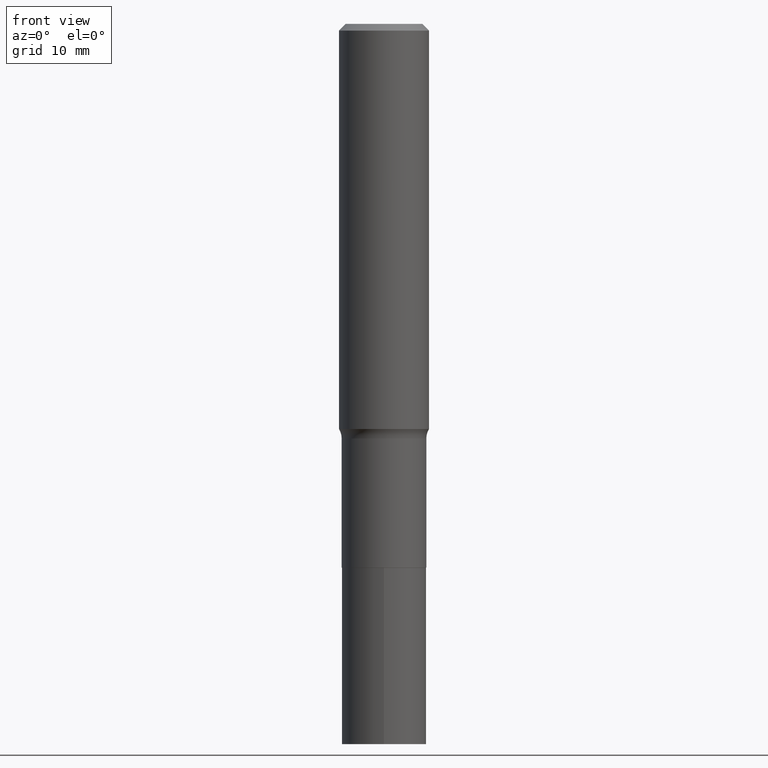
[diagram: clean part render]
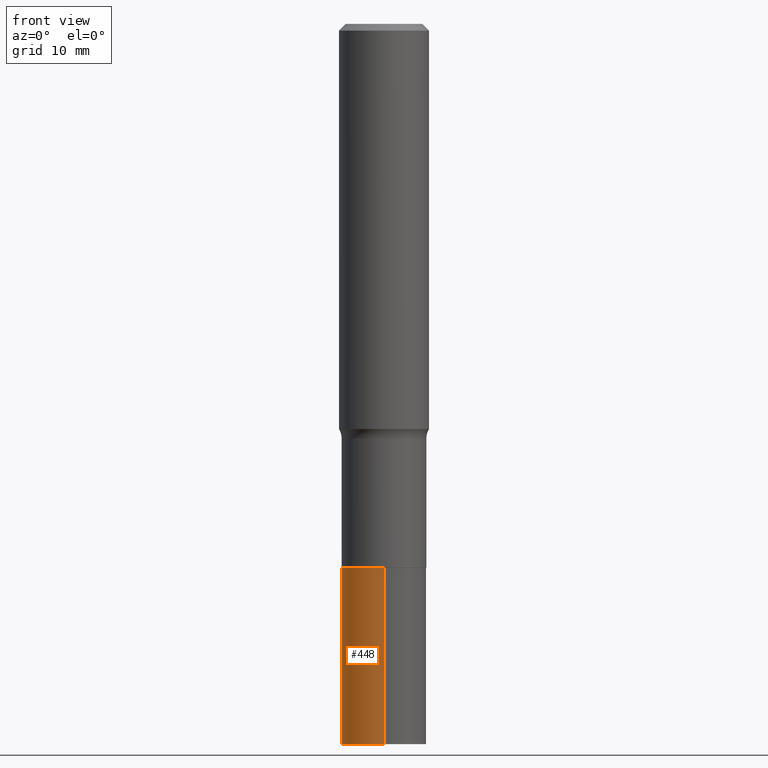
[diagram: same view with one face highlighted and labeled with its STEP entity id]
A machine part, front view. The second image highlights one B-rep face of the part: STEP entity #448.
In plain terms, the highlighted cylindrical surface (partial cylindrical patch) has radius 4.7003 mm, axis along (-0, 0, 1).
Its self-contained STEP definition (entity closure, byte-faithful):
#27 = EDGE_CURVE ( 'NONE', #140, #126, #412, .T. ) ;
#46 = ORIENTED_EDGE ( 'NONE', *, *, #159, .T. ) ;
#47 = LINE ( 'NONE', #193, #268 ) ;
#57 = EDGE_CURVE ( 'NONE', #123, #404, #212, .T. ) ;
#58 = CYLINDRICAL_SURFACE ( 'NONE', #143, 0.1850499999999999923 ) ;
#59 = CARTESIAN_POINT ( 'NONE',  ( 1.314859332524142253E-15, 0.1850499999999916934, -2.377600000000001046 ) ) ;
#70 = DIRECTION ( 'NONE',  ( -2.446011938382070337E-29, 3.490703542623971716E-15, 1.000000000000000000 ) ) ;
#91 = FACE_OUTER_BOUND ( 'NONE', #413, .T. ) ;
#123 = VERTEX_POINT ( 'NONE', #59 ) ;
#126 = VERTEX_POINT ( 'NONE', #280 ) ;
#140 = VERTEX_POINT ( 'NONE', #242 ) ;
#143 = AXIS2_PLACEMENT_3D ( 'NONE', #241, #385, #313 ) ;
#159 = EDGE_CURVE ( 'NONE', #126, #404, #172, .T. ) ;
#172 = LINE ( 'NONE', #319, #440 ) ;
#190 = DIRECTION ( 'NONE',  ( -2.446011938382070337E-29, 3.490703542623971321E-15, 1.000000000000000000 ) ) ;
#193 = CARTESIAN_POINT ( 'NONE',  ( 1.314859332524123320E-15, 0.1850499999999916934, -2.377600000000001046 ) ) ;
#207 = ORIENTED_EDGE ( 'NONE', *, *, #27, .T. ) ;
#209 = CARTESIAN_POINT ( 'NONE',  ( 7.702667850016740557E-29, -1.099616916613917186E-14, -3.149600000000000843 ) ) ;
#212 = CIRCLE ( 'NONE', #377, 0.1850499999999999923 ) ;
#226 = EDGE_CURVE ( 'NONE', #140, #123, #47, .T. ) ;
#240 = DIRECTION ( 'NONE',  ( -2.446011938382070337E-29, 3.490703542623971716E-15, 1.000000000000000000 ) ) ;
#241 = CARTESIAN_POINT ( 'NONE',  ( 5.814346633585781088E-29, -8.301346031233465092E-15, -2.377600000000000158 ) ) ;
#242 = CARTESIAN_POINT ( 'NONE',  ( 1.314859332524132787E-15, 0.1850499999999890011, -3.149600000000001288 ) ) ;
#257 = AXIS2_PLACEMENT_3D ( 'NONE', #209, #70, #358 ) ;
#259 = DIRECTION ( 'NONE',  ( -2.446011938382070337E-29, 3.490703542623971321E-15, 1.000000000000000000 ) ) ;
#268 = VECTOR ( 'NONE', #190, 39.37007874015748143 ) ;
#280 = CARTESIAN_POINT ( 'NONE',  ( -1.292197243505766373E-15, -0.1850500000000109835, -3.149600000000000399 ) ) ;
#286 = ORIENTED_EDGE ( 'NONE', *, *, #226, .F. ) ;
#298 = CARTESIAN_POINT ( 'NONE',  ( -1.292197243505785109E-15, -0.1850500000000082912, -2.377599999999999714 ) ) ;
#313 = DIRECTION ( 'NONE',  ( -6.982962677686265133E-15, -1.000000000000000000, 2.952551195530141356E-15 ) ) ;
#316 = DIRECTION ( 'NONE',  ( -6.982962677686265133E-15, -1.000000000000000000, 2.952551195530141356E-15 ) ) ;
#319 = CARTESIAN_POINT ( 'NONE',  ( -1.292197243505785109E-15, -0.1850500000000082912, -2.377599999999999714 ) ) ;
#358 = DIRECTION ( 'NONE',  ( -6.982962677686265133E-15, -1.000000000000000000, 2.952551195530141356E-15 ) ) ;
#377 = AXIS2_PLACEMENT_3D ( 'NONE', #423, #240, #316 ) ;
#381 = ORIENTED_EDGE ( 'NONE', *, *, #57, .F. ) ;
#385 = DIRECTION ( 'NONE',  ( -2.446011938382070337E-29, 3.490703542623971716E-15, 1.000000000000000000 ) ) ;
#404 = VERTEX_POINT ( 'NONE', #298 ) ;
#412 = CIRCLE ( 'NONE', #257, 0.1850499999999999923 ) ;
#413 = EDGE_LOOP ( 'NONE', ( #286, #207, #46, #381 ) ) ;
#423 = CARTESIAN_POINT ( 'NONE',  ( 5.814346633585781088E-29, -8.301346031233465092E-15, -2.377600000000000158 ) ) ;
#440 = VECTOR ( 'NONE', #259, 39.37007874015748143 ) ;
#448 = ADVANCED_FACE ( 'NONE', ( #91 ), #58, .T. ) ;